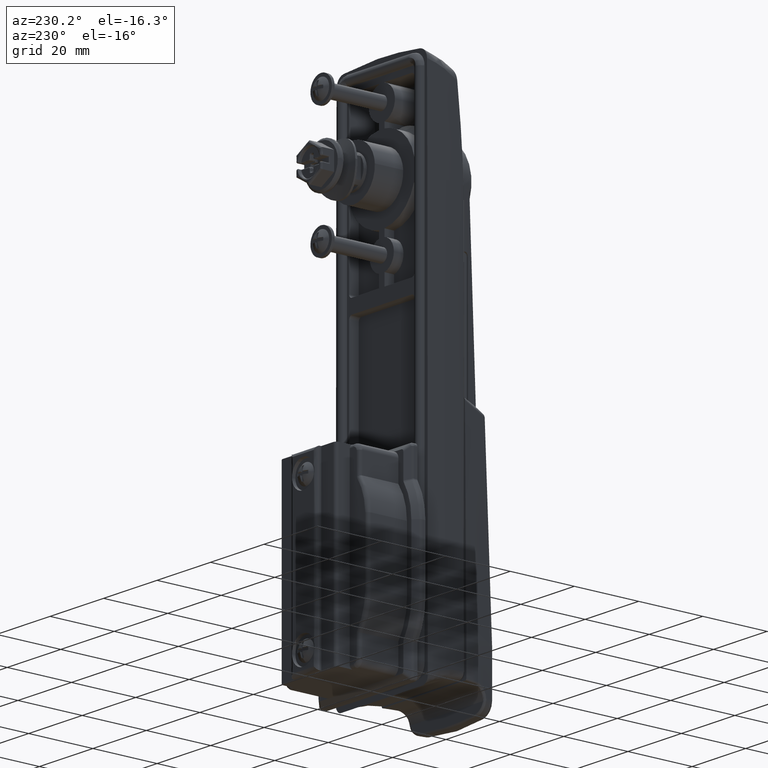
[diagram: clean part render]
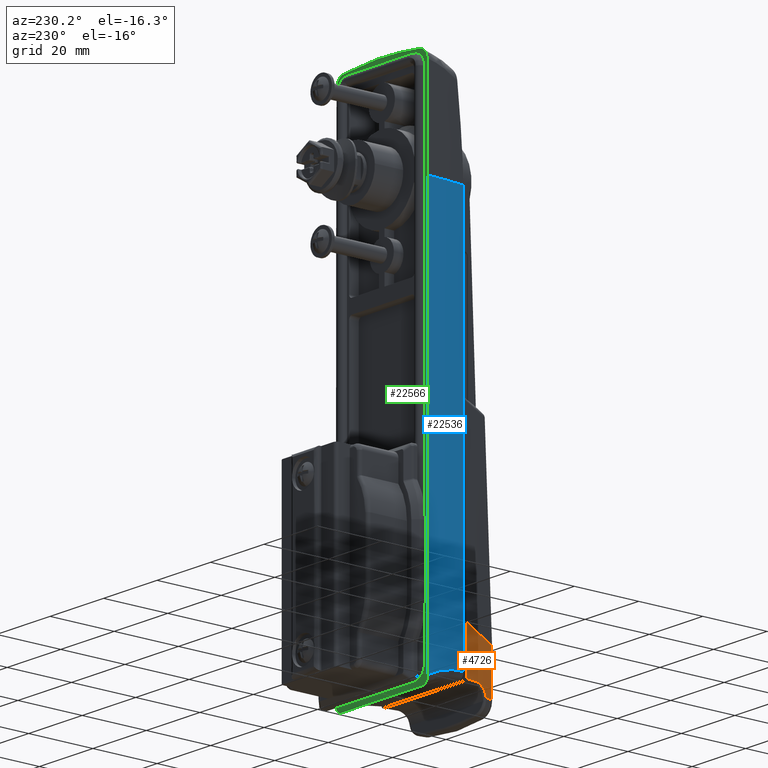
[diagram: same view with three faces highlighted in distinct colors, each labeled with its STEP entity id]
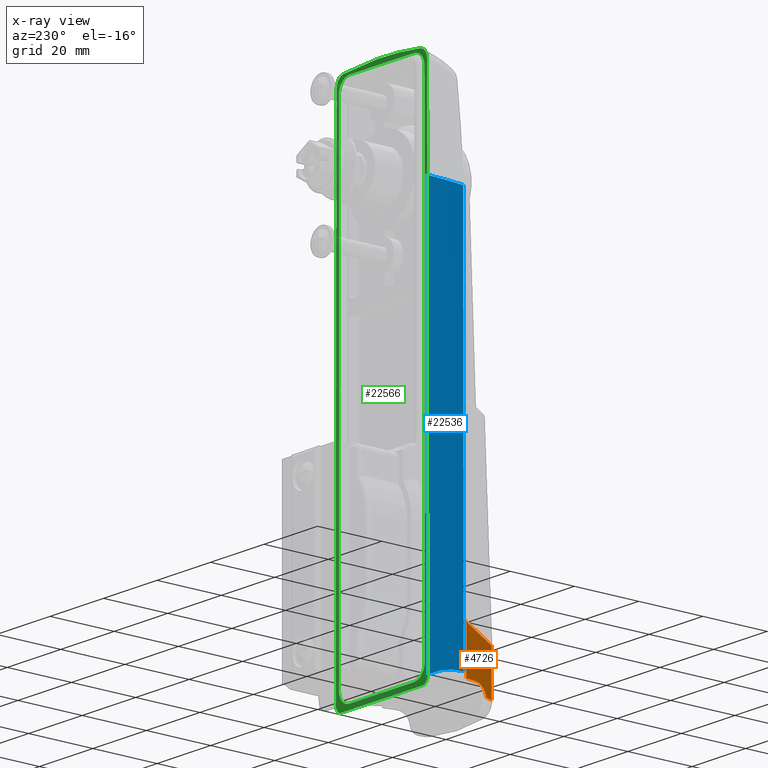
[diagram: x-ray of the same camera — body ghosted, the three highlighted faces saturated]
A machine part, auxiliary view with three faces highlighted in distinct colors.
The next image is the same camera in x-ray (body ghosted, the three faces saturated) — at least one of them is partly hidden behind the body in this view.
Their STEP definitions:

[orange] entity #4726 — the highlighted face is a freeform B-spline surface patch.
#1940=CARTESIAN_POINT('',(-20.437741579774698,14.173826685239799,-128.573514053459010));
#1941=VERTEX_POINT('',#1940);
#2052=CARTESIAN_POINT('',(-16.605501965684351,15.093079261935500,-125.500802460575400));
#2053=VERTEX_POINT('',#2052);
#2100=CARTESIAN_POINT('',(-16.605501965684351,15.093079261935500,-125.500802460575400));
#2101=CARTESIAN_POINT('',(-16.827259303146342,15.045209829929840,-125.500802390407000));
#2102=CARTESIAN_POINT('',(-17.264254399105589,14.949088619563851,-125.537942113242490));
#2103=CARTESIAN_POINT('',(-17.688808287833499,14.852352010851250,-125.646102903450400));
#2104=CARTESIAN_POINT('',(-17.950131986886610,14.791812633268449,-125.736820967770700));
#2105=CARTESIAN_POINT('',(-18.002089702753409,14.779725107226550,-125.756097955388600));
#2106=CARTESIAN_POINT('',(-18.104669506207820,14.755763922209050,-125.796628388056600));
#2107=CARTESIAN_POINT('',(-18.155398548861310,14.743865516036260,-125.817918198421790));
#2108=CARTESIAN_POINT('',(-18.305925429547159,14.708420586358651,-125.884823576951500));
#2109=CARTESIAN_POINT('',(-18.404065922734830,14.685123746863230,-125.933469714457300));
#2110=CARTESIAN_POINT('',(-18.691925368377031,14.616284173821530,-126.091433603701400));
#2111=CARTESIAN_POINT('',(-18.875131785500049,14.571780755695119,-126.212684557519590));
#2112=CARTESIAN_POINT('',(-19.092784929724630,14.518217882060490,-126.385161731757410));
#2113=CARTESIAN_POINT('',(-19.135787957097101,14.507598458035339,-126.420755985476500));
#2114=CARTESIAN_POINT('',(-19.219827187148859,14.486777904389530,-126.493389225147790));
#2115=CARTESIAN_POINT('',(-19.260963966618061,14.476552115898629,-126.530504005486510));
#2116=CARTESIAN_POINT('',(-19.381759383585091,14.446431535349729,-126.644214706792890));
#2117=CARTESIAN_POINT('',(-19.458807800658601,14.427092531759190,-126.723172734868100));
#2118=CARTESIAN_POINT('',(-19.679600805298591,14.371362369403201,-126.969432949510600));
#2119=CARTESIAN_POINT('',(-19.813073939053979,14.337239293128720,-127.146047814394290));
#2120=CARTESIAN_POINT('',(-19.961913021620930,14.298839051972850,-127.383198728200300));
#2121=CARTESIAN_POINT('',(-19.990834358631162,14.291357543896959,-127.431566495837300));
#2122=CARTESIAN_POINT('',(-20.046337405507021,14.276965089209870,-127.529130283157800));
#2123=CARTESIAN_POINT('',(-20.072962578813911,14.270043020656180,-127.578384717072890));
#2124=CARTESIAN_POINT('',(-20.149500359209789,14.250098384281090,-127.727549256621000));
#2125=CARTESIAN_POINT('',(-20.196081332915700,14.237896081916480,-127.828858057243490));
#2126=CARTESIAN_POINT('',(-20.322594530982279,14.204612104791000,-128.138345406523090));
#2127=CARTESIAN_POINT('',(-20.389402698898898,14.186829560079939,-128.352040771046690));
#2128=CARTESIAN_POINT('',(-20.437741579775551,14.173826685239559,-128.573514053462590));
#2129=B_SPLINE_CURVE_WITH_KNOTS('',3,(#2100,#2101,#2102,#2103,#2104,#2105,#2106,#2107,#2108,#2109,#2110,#2111,#2112,#2113,#2114,#2115,#2116,#2117,#2118,#2119,#2120,#2121,#2122,#2123,#2124,#2125,#2126,#2127,#2128),.UNSPECIFIED.,.F.,.U.,(4,1,2,2,2,2,2,2,2,2,2,2,2,2,4),(0.0,0.125000000000027,0.250000000000054,0.281250000000060,0.312500000000067,0.375000000000073,0.500000000000085,0.531250000000085,0.562500000000085,0.625000000000074,0.750000000000054,0.781250000000049,0.812500000000044,0.875000000000034,1.0),.UNSPECIFIED.);
#2130=EDGE_CURVE('',#2053,#1941,#2129,.T.);
#2185=CARTESIAN_POINT('',(-12.850000756554859,15.821711655233900,-125.500812781385210));
#2186=VERTEX_POINT('',#2185);
#2220=CARTESIAN_POINT('',(-12.850000756554859,15.821711655233900,-125.500812781384990));
#2221=CARTESIAN_POINT('',(-14.106789356552440,15.605120382923269,-125.500809569918000));
#2222=CARTESIAN_POINT('',(-15.358875697322141,15.362181023727601,-125.500806129354200));
#2223=CARTESIAN_POINT('',(-16.605501965684301,15.093079261935500,-125.500802460577400));
#2224=QUASI_UNIFORM_CURVE('',3,(#2220,#2221,#2222,#2223),.UNSPECIFIED.,.F.,.U.);
#2225=EDGE_CURVE('',#2186,#2053,#2224,.T.);
#2612=CARTESIAN_POINT('',(-22.501971576443498,13.607963353824420,-128.650667776603600));
#2613=VERTEX_POINT('',#2612);
#2919=CARTESIAN_POINT('',(-22.500207369770351,13.630772271704700,-115.024608552734190));
#2920=VERTEX_POINT('',#2919);
#2930=CARTESIAN_POINT('',(-22.501971576443498,13.607963353824420,-128.650667776603600));
#2931=CARTESIAN_POINT('',(-22.500207369770351,13.630772271704700,-115.024608552734190));
#2932=QUASI_UNIFORM_CURVE('',1,(#2930,#2931),.UNSPECIFIED.,.F.,.U.);
#2933=EDGE_CURVE('',#2613,#2920,#2932,.T.);
#4353=CARTESIAN_POINT('',(-20.437741579774709,14.173826685239799,-128.573514053458890));
#4354=CARTESIAN_POINT('',(-21.128002714580671,13.993285559642150,-128.598808722920610));
#4355=CARTESIAN_POINT('',(-21.816151474673330,13.804646962075211,-128.624588930368300));
#4356=CARTESIAN_POINT('',(-22.501971576443530,13.607963353824429,-128.650667776603710));
#4357=QUASI_UNIFORM_CURVE('',3,(#4353,#4354,#4355,#4356),.UNSPECIFIED.,.F.,.U.);
#4358=EDGE_CURVE('',#1941,#2613,#4357,.T.);
#4654=CARTESIAN_POINT('',(-12.850000757293680,15.844782597469001,-111.405629074290600));
#4655=VERTEX_POINT('',#4654);
#4661=CARTESIAN_POINT('',(-12.850000757293680,15.844782597469001,-111.405629074290600));
#4662=CARTESIAN_POINT('',(-14.478377322571680,15.563168672131431,-112.007300921663800));
#4663=CARTESIAN_POINT('',(-16.097426644370561,15.237604086658511,-112.610063289267500));
#4664=CARTESIAN_POINT('',(-19.315743963194841,14.499149493107669,-113.817085305644300));
#4665=CARTESIAN_POINT('',(-20.914136686038852,14.086489876848750,-114.421013812189200));
#4666=CARTESIAN_POINT('',(-22.500207369416611,13.630772271812120,-115.024608552607400));
#4667=B_SPLINE_CURVE_WITH_KNOTS('',3,(#4661,#4662,#4663,#4664,#4665,#4666),.UNSPECIFIED.,.F.,.U.,(4,2,4),(0.0,0.500000000000000,0.999607673217950),.UNSPECIFIED.);
#4668=EDGE_CURVE('',#4655,#2920,#4667,.T.);
#4697=CARTESIAN_POINT('',(-22.597207533016640,13.580327619699711,-128.823118163626790));
#4698=CARTESIAN_POINT('',(-19.360511515486909,14.512164345254689,-128.823118163626700));
#4699=CARTESIAN_POINT('',(-16.072227485383710,15.264625764035451,-128.823118163626700));
#4700=CARTESIAN_POINT('',(-12.752376062995300,15.833098040190400,-128.823118163626790));
#4701=CARTESIAN_POINT('',(-22.596457411890029,13.590140624569001,-122.959805004840210));
#4702=CARTESIAN_POINT('',(-19.360005945502721,14.521876967636770,-122.959805004840210));
#4703=CARTESIAN_POINT('',(-16.071976043732519,15.274265573301800,-122.959805004840210));
#4704=CARTESIAN_POINT('',(-12.752383679539440,15.842693775904030,-122.959805004840210));
#4705=CARTESIAN_POINT('',(-22.595707290763428,13.599953629438280,-117.096491846053690));
#4706=CARTESIAN_POINT('',(-19.359500375518561,14.531589590018870,-117.096491846053690));
#4707=CARTESIAN_POINT('',(-16.071724602081328,15.283905382568170,-117.096491846053690));
#4708=CARTESIAN_POINT('',(-12.752391296083580,15.852289511617681,-117.096491846053690));
#4709=CARTESIAN_POINT('',(-22.594957169636821,13.609766634307570,-111.233178687267200));
#4710=CARTESIAN_POINT('',(-19.358994805534358,14.541302212400950,-111.233178687267300));
#4711=CARTESIAN_POINT('',(-16.071473160430131,15.293545191834500,-111.233178687267300));
#4712=CARTESIAN_POINT('',(-12.752398912627720,15.861885247331299,-111.233178687267300));
#4713=B_SPLINE_SURFACE_WITH_KNOTS('',3,3,((#4697,#4701,#4705,#4709),(#4698,#4702,#4706,#4710),(#4699,#4703,#4707,#4711),(#4700,#4704,#4708,#4712)),.UNSPECIFIED.,.F.,.F.,.U.,(4,4),(4,4),(0.0,10.104512247477381),(0.0,17.589964255271070),.UNSPECIFIED.);
#4714=CARTESIAN_POINT('',(-12.850000756554881,15.821711655233949,-125.500812781385210));
#4715=CARTESIAN_POINT('',(-12.850000756554870,15.844782597465890,-111.405629074290600));
#4716=B_SPLINE_CURVE_WITH_KNOTS('',1,(#4714,#4715),.UNSPECIFIED.,.F.,.U.,(2,2),(0.001968087661608,0.643941251325925),.UNSPECIFIED.);
#4717=EDGE_CURVE('',#2186,#4655,#4716,.T.);
#4718=ORIENTED_EDGE('',*,*,#4717,.F.);
#4719=ORIENTED_EDGE('',*,*,#2225,.T.);
#4720=ORIENTED_EDGE('',*,*,#2130,.T.);
#4721=ORIENTED_EDGE('',*,*,#4358,.T.);
#4722=ORIENTED_EDGE('',*,*,#2933,.T.);
#4723=ORIENTED_EDGE('',*,*,#4668,.F.);
#4724=EDGE_LOOP('',(#4718,#4719,#4720,#4721,#4722,#4723));
#4725=FACE_OUTER_BOUND('',#4724,.T.);
#4726=ADVANCED_FACE('',(#4725),#4713,.F.);

[blue] entity #22536 — the highlighted face is a freeform B-spline surface patch.
#17840=CARTESIAN_POINT('',(-12.188371010545641,15.946216387230249,-124.013165944536990));
#17841=VERTEX_POINT('',#17840);
#17993=CARTESIAN_POINT('',(-12.188371010545501,15.802942081787300,-2.741120213272550));
#17994=VERTEX_POINT('',#17993);
#18030=CARTESIAN_POINT('',(-12.187701617093960,15.803056015544600,-2.741120213272550));
#18031=VERTEX_POINT('',#18030);
#18041=CARTESIAN_POINT('',(-12.188371010545501,15.802942081787300,-2.741120213272550));
#18042=CARTESIAN_POINT('',(-12.188147879531639,15.802980060511690,-2.741120213272582));
#18043=CARTESIAN_POINT('',(-12.187924748381119,15.803018038430791,-2.741120213272583));
#18044=CARTESIAN_POINT('',(-12.187701617093960,15.803056015544600,-2.741120213272550));
#18045=B_SPLINE_CURVE_WITH_KNOTS('',3,(#18041,#18042,#18043,#18044),.UNSPECIFIED.,.T.,.U.,(4,4),(0.011701804692554,1.0),.UNSPECIFIED.);
#18046=EDGE_CURVE('',#17994,#18031,#18045,.T.);
#18071=CARTESIAN_POINT('',(-12.188371010545641,15.946216387230249,-124.013165944536990));
#18072=CARTESIAN_POINT('',(-12.188371010545501,15.802942081787300,-2.741120213272550));
#18073=QUASI_UNIFORM_CURVE('',1,(#18071,#18072),.UNSPECIFIED.,.F.,.U.);
#18074=EDGE_CURVE('',#17841,#17994,#18073,.T.);
#18500=CARTESIAN_POINT('',(6.533205E-010,17.197324405857600,-127.378146507383600));
#18501=VERTEX_POINT('',#18500);
#18502=CARTESIAN_POINT('',(6.533205E-010,17.197324405857600,-127.378146507383600));
#18503=CARTESIAN_POINT('',(-0.116840766305112,17.193117683980340,-127.313363233889110));
#18504=CARTESIAN_POINT('',(-0.234500941312380,17.188658739707272,-127.249273611988500));
#18505=CARTESIAN_POINT('',(-0.470282840889361,17.179268855845859,-127.123127407136100));
#18506=CARTESIAN_POINT('',(-0.825234978199643,17.164454884556609,-126.936632081574000));
#18507=CARTESIAN_POINT('',(-1.423195171258767,17.136045329422469,-126.639386305381610));
#18508=CARTESIAN_POINT('',(-1.908329810677044,17.109189769163962,-126.416025989212000));
#18509=CARTESIAN_POINT('',(-2.396841194692513,17.080188231097399,-126.199878983044900));
#18510=CARTESIAN_POINT('',(-2.642949573232096,17.064603155483791,-126.095346325173300));
#18511=CARTESIAN_POINT('',(-3.879816512233944,16.981247914473229,-125.591606354662300));
#18512=CARTESIAN_POINT('',(-4.887791184733109,16.897338940870000,-125.249548242130800));
#18513=CARTESIAN_POINT('',(-6.426749776293596,16.742782501730328,-124.826408089207400));
#18514=CARTESIAN_POINT('',(-6.944792267004319,16.686404703850119,-124.700314386348000));
#18515=CARTESIAN_POINT('',(-7.984091601599841,16.564290371838659,-124.479513156394500));
#18516=CARTESIAN_POINT('',(-8.505943484486396,16.498503283712360,-124.384608858896800));
#18517=CARTESIAN_POINT('',(-9.553971013162029,16.357189104746261,-124.225542823323390));
#18518=CARTESIAN_POINT('',(-10.080695395912850,16.281572170395378,-124.161351787277990));
#18519=CARTESIAN_POINT('',(-11.134085155386780,16.120988064622971,-124.064100267723210));
#18520=CARTESIAN_POINT('',(-11.661084640311451,16.035985905763692,-124.030955427169200));
#18521=CARTESIAN_POINT('',(-12.188371010545699,15.946216387230230,-124.013165944537110));
#18522=B_SPLINE_CURVE_WITH_KNOTS('',3,(#18502,#18503,#18504,#18505,#18506,#18507,#18508,#18509,#18510,#18511,#18512,#18513,#18514,#18515,#18516,#18517,#18518,#18519,#18520,#18521),.UNSPECIFIED.,.F.,.U.,(4,2,1,1,2,2,2,2,2,2,4),(0.0,0.031250000000000,0.062500000000000,0.125000000000000,0.187499999999999,0.249999999999999,0.499999999999999,0.624999999999999,0.749999999999999,0.875000000000000,1.0),.UNSPECIFIED.);
#18523=EDGE_CURVE('',#18501,#17841,#18522,.T.);
#22447=CARTESIAN_POINT('',(0.000000013799381,17.050074615089049,-2.741120213272565));
#22448=VERTEX_POINT('',#22447);
#22449=CARTESIAN_POINT('',(0.000000013799381,17.050074615089049,-2.741120213272565));
#22450=CARTESIAN_POINT('',(-4.084294811390555,16.905699549032949,-2.741120213272550));
#22451=CARTESIAN_POINT('',(-8.158804231884421,16.488777040942029,-2.741120213272550));
#22452=CARTESIAN_POINT('',(-12.187701617093960,15.803056015544589,-2.741120213272550));
#22453=B_SPLINE_CURVE_WITH_KNOTS('',3,(#22449,#22450,#22451,#22452),.UNSPECIFIED.,.F.,.U.,(4,4),(0.0,0.966654781013737),.UNSPECIFIED.);
#22454=EDGE_CURVE('',#22448,#18031,#22453,.T.);
#22508=CARTESIAN_POINT('',(0.122535644246560,17.052933609405091,-1.494749950331016));
#22509=CARTESIAN_POINT('',(-4.043868851036310,16.911141151255791,-1.494749950331015));
#22510=CARTESIAN_POINT('',(-8.200466985240919,16.485801938385780,-1.494749950331016));
#22511=CARTESIAN_POINT('',(-12.309244474597810,15.780895920523760,-1.494749950331016));
#22512=CARTESIAN_POINT('',(0.122535644246527,17.102998538307769,-43.871338890328950));
#22513=CARTESIAN_POINT('',(-4.043868851036303,16.961206080158480,-43.871338890328943));
#22514=CARTESIAN_POINT('',(-8.200466985240924,16.535866867288480,-43.871338890328943));
#22515=CARTESIAN_POINT('',(-12.309244474597810,15.830960849426489,-43.871338890328950));
#22516=CARTESIAN_POINT('',(0.122535644246494,17.153063467210458,-86.247927830326816));
#22517=CARTESIAN_POINT('',(-4.043868851036303,17.011271009061161,-86.247927830326816));
#22518=CARTESIAN_POINT('',(-8.200466985240935,16.585931796191161,-86.247927830326816));
#22519=CARTESIAN_POINT('',(-12.309244474597831,15.881025778329169,-86.247927830326816));
#22520=CARTESIAN_POINT('',(0.122535644246461,17.203128396113151,-128.624516770324700));
#22521=CARTESIAN_POINT('',(-4.043868851036299,17.061335937963850,-128.624516770324700));
#22522=CARTESIAN_POINT('',(-8.200466985240958,16.635996725093840,-128.624516770324700));
#22523=CARTESIAN_POINT('',(-12.309244474597831,15.931090707231860,-128.624516770324700));
#22524=B_SPLINE_SURFACE_WITH_KNOTS('',3,3,((#22508,#22512,#22516,#22520),(#22509,#22513,#22517,#22521),(#22510,#22514,#22518,#22522),(#22511,#22515,#22519,#22523)),.UNSPECIFIED.,.F.,.F.,.U.,(4,4),(4,4),(0.0,12.506449683084000),(0.0,127.129855542197300),.UNSPECIFIED.);
#22525=ORIENTED_EDGE('',*,*,#18074,.T.);
#22526=ORIENTED_EDGE('',*,*,#18046,.T.);
#22527=ORIENTED_EDGE('',*,*,#22454,.F.);
#22528=CARTESIAN_POINT('',(0.000000013799381,17.050074615089049,-2.741120213272565));
#22529=CARTESIAN_POINT('',(1.306644E-009,17.197324405857760,-127.378146507383600));
#22530=B_SPLINE_CURVE_WITH_KNOTS('',1,(#22528,#22529),.UNSPECIFIED.,.F.,.U.,(2,2),(0.0,0.981970075848105),.UNSPECIFIED.);
#22531=EDGE_CURVE('',#22448,#18501,#22530,.T.);
#22532=ORIENTED_EDGE('',*,*,#22531,.T.);
#22533=ORIENTED_EDGE('',*,*,#18523,.T.);
#22534=EDGE_LOOP('',(#22525,#22526,#22527,#22532,#22533));
#22535=FACE_OUTER_BOUND('',#22534,.T.);
#22536=ADVANCED_FACE('',(#22535),#22524,.F.);

[green] entity #22566 — the highlighted face is a freeform B-spline surface patch.
#18214=CARTESIAN_POINT('',(1.959946E-009,-17.197324400774551,-127.378146501003600));
#18215=VERTEX_POINT('',#18214);
#18239=CARTESIAN_POINT('',(3.028732E-014,-15.234333885611051,-129.666603341121400));
#18240=VERTEX_POINT('',#18239);
#18270=CARTESIAN_POINT('',(1.959946E-009,-17.197324400774551,-127.378146501003600));
#18271=CARTESIAN_POINT('',(1.226373E-009,-17.197490496562828,-127.518735468622910));
#18272=CARTESIAN_POINT('',(1.147359E-009,-17.186520723997649,-127.657125390605200));
#18273=CARTESIAN_POINT('',(9.917232E-010,-17.143348145423872,-127.929712260310400));
#18274=CARTESIAN_POINT('',(9.151022E-010,-17.111147920065729,-128.063909717645090));
#18275=CARTESIAN_POINT('',(8.020649E-010,-17.046048502534440,-128.261888520472100));
#18276=CARTESIAN_POINT('',(7.646250E-010,-17.021473181712690,-128.327462357820000));
#18277=CARTESIAN_POINT('',(6.907572E-010,-16.966540053578459,-128.456837801461210));
#18278=CARTESIAN_POINT('',(6.547791E-010,-16.936529228937559,-128.519851588495100));
#18279=CARTESIAN_POINT('',(5.497026E-010,-16.838888642040800,-128.703887375443000));
#18280=CARTESIAN_POINT('',(4.834321E-010,-16.763731050535949,-128.819956621940690));
#18281=CARTESIAN_POINT('',(3.901584E-010,-16.634670369965509,-128.983320317222900));
#18282=CARTESIAN_POINT('',(3.600961E-010,-16.588911178137270,-129.035972846475000));
#18283=CARTESIAN_POINT('',(3.166844E-010,-16.515795327310919,-129.112006064842490));
#18284=CARTESIAN_POINT('',(3.025168E-010,-16.490703144948750,-129.136819875676590));
#18285=CARTESIAN_POINT('',(2.751020E-010,-16.439596298639380,-129.184835445308290));
#18286=CARTESIAN_POINT('',(2.618119E-010,-16.413510960202089,-129.208112365271010));
#18287=CARTESIAN_POINT('',(1.974656E-010,-16.280401978645020,-129.320811432649610));
#18288=CARTESIAN_POINT('',(1.526451E-010,-16.165429848688341,-129.399312161082690));
#18289=CARTESIAN_POINT('',(1.059425E-010,-16.009830694544060,-129.481109170893010));
#18290=CARTESIAN_POINT('',(9.706165E-011,-15.978048264489439,-129.496663507439590));
#18291=CARTESIAN_POINT('',(8.050522E-011,-15.914114163929380,-129.525661188167990));
#18292=CARTESIAN_POINT('',(7.279810E-011,-15.881865965540539,-129.539159797460000));
#18293=CARTESIAN_POINT('',(5.138222E-011,-15.784281756637061,-129.576668560077710));
#18294=CARTESIAN_POINT('',(3.937443E-011,-15.718108353800730,-129.597699551198300));
#18295=CARTESIAN_POINT('',(1.996424E-011,-15.583494306606511,-129.631695445328400));
#18296=CARTESIAN_POINT('',(1.256113E-011,-15.515054014773799,-129.644661602504700));
#18297=CARTESIAN_POINT('',(2.579150E-012,-15.375798443463189,-129.662144504023590));
#18298=CARTESIAN_POINT('',(3.334774E-014,-15.304991060142321,-129.666603341110490));
#18299=CARTESIAN_POINT('',(3.334915E-014,-15.234333885610800,-129.666603341110600));
#18300=B_SPLINE_CURVE_WITH_KNOTS('',3,(#18270,#18271,#18272,#18273,#18274,#18275,#18276,#18277,#18278,#18279,#18280,#18281,#18282,#18283,#18284,#18285,#18286,#18287,#18288,#18289,#18290,#18291,#18292,#18293,#18294,#18295,#18296,#18297,#18298,#18299),.UNSPECIFIED.,.F.,.U.,(4,2,2,2,2,2,2,2,2,2,2,2,2,2,4),(0.0,0.124999999999957,0.249999999999914,0.312499999999905,0.374999999999896,0.499999999999900,0.562499999999903,0.593749999999903,0.624999999999904,0.749999999999910,0.781249999999920,0.812499999999930,0.874999999999953,0.937499999999977,1.0),.UNSPECIFIED.);
#18301=EDGE_CURVE('',#18215,#18240,#18300,.T.);
#18468=CARTESIAN_POINT('',(2.655610E-014,15.234333897662950,-129.666603341121400));
#18469=VERTEX_POINT('',#18468);
#18500=CARTESIAN_POINT('',(6.533205E-010,17.197324405857600,-127.378146507383600));
#18501=VERTEX_POINT('',#18500);
#18525=CARTESIAN_POINT('',(2.655610E-014,15.234333897662950,-129.666603341121400));
#18526=CARTESIAN_POINT('',(4.819798E-012,15.375104337358080,-129.666603341113610));
#18527=CARTESIAN_POINT('',(9.931127E-012,15.512816257586049,-129.649268996253800));
#18528=CARTESIAN_POINT('',(3.403494E-011,15.681330508908429,-129.607052479455490));
#18529=CARTESIAN_POINT('',(3.944839E-011,15.714850201947300,-129.597571121394400));
#18530=CARTESIAN_POINT('',(5.146848E-011,15.781520852415120,-129.576518573805400));
#18531=CARTESIAN_POINT('',(5.810043E-011,15.814781684520380,-129.564903085778210));
#18532=CARTESIAN_POINT('',(7.959627E-011,15.913050169870949,-129.527254290199690));
#18533=CARTESIAN_POINT('',(9.602359E-011,15.976508049516410,-129.498482725494400));
#18534=CARTESIAN_POINT('',(1.328024E-010,16.099578844513260,-129.434066630435410));
#18535=CARTESIAN_POINT('',(1.531549E-010,16.159190757337441,-129.398420308040190));
#18536=CARTESIAN_POINT('',(1.976565E-010,16.274694661933399,-129.320478215386690));
#18537=CARTESIAN_POINT('',(2.219530E-010,16.330872005138620,-129.277924199562990));
#18538=CARTESIAN_POINT('',(2.992407E-010,16.491291474151200,-129.142559064754010));
#18539=CARTESIAN_POINT('',(3.564634E-010,16.587600004790609,-129.042336459919110));
#18540=CARTESIAN_POINT('',(4.500003E-010,16.717681691978619,-128.878511799052010));
#18541=CARTESIAN_POINT('',(4.826307E-010,16.758789198139890,-128.821361368129200));
#18542=CARTESIAN_POINT('',(5.495096E-010,16.835158206977841,-128.704226607978310));
#18543=CARTESIAN_POINT('',(5.837602E-010,16.870470715258651,-128.644238537408310));
#18544=CARTESIAN_POINT('',(6.888086E-010,16.968276796567970,-128.460251944058400));
#18545=CARTESIAN_POINT('',(7.618836E-010,17.022707683926669,-128.332265052095100));
#18546=CARTESIAN_POINT('',(9.139361E-010,17.110670795188192,-128.065953325116200));
#18547=CARTESIAN_POINT('',(9.911995E-010,17.143182528376752,-127.930630731955110));
#18548=CARTESIAN_POINT('',(1.147460E-009,17.186568748293109,-127.656949122890690));
#18549=CARTESIAN_POINT('',(1.226555E-009,17.197490126522428,-127.518417814006600));
#18550=CARTESIAN_POINT('',(1.306644E-009,17.197324405903650,-127.378146507383600));
#18551=B_SPLINE_CURVE_WITH_KNOTS('',3,(#18525,#18526,#18527,#18528,#18529,#18530,#18531,#18532,#18533,#18534,#18535,#18536,#18537,#18538,#18539,#18540,#18541,#18542,#18543,#18544,#18545,#18546,#18547,#18548,#18549,#18550),.UNSPECIFIED.,.F.,.U.,(4,2,2,2,2,2,2,2,2,2,2,2,4),(0.0,0.125000000000014,0.156250000000020,0.187500000000025,0.250000000000036,0.312500000000047,0.375000000000058,0.500000000000078,0.562500000000077,0.625000000000076,0.750000000000051,0.875000000000025,1.0),.UNSPECIFIED.);
#18552=EDGE_CURVE('',#18469,#18501,#18551,.T.);
#18655=CARTESIAN_POINT('',(0.000000091353040,-14.277100748402420,29.439197527204001));
#18656=VERTEX_POINT('',#18655);
#18678=CARTESIAN_POINT('',(0.000000044522055,-16.892713804516550,26.442357845155151));
#18679=VERTEX_POINT('',#18678);
#18701=CARTESIAN_POINT('',(0.000000091353039,-14.277100748402420,29.439197527204001));
#18702=CARTESIAN_POINT('',(0.000000091340020,-14.458420608423280,29.416395337174212));
#18703=CARTESIAN_POINT('',(0.000000090807253,-14.634813112475570,29.377320844990599));
#18704=CARTESIAN_POINT('',(0.000000090760433,-14.892319263712221,29.295319222412779));
#18705=CARTESIAN_POINT('',(0.000000090742587,-14.976966640763330,29.264062026256799));
#18706=CARTESIAN_POINT('',(0.000000090712404,-15.102127571633019,29.211198369031230));
#18707=CARTESIAN_POINT('',(0.000000090701773,-15.143545734775870,29.192579326843010));
#18708=CARTESIAN_POINT('',(0.000000090679353,-15.225767278772921,29.153310960257699));
#18709=CARTESIAN_POINT('',(0.000000090667552,-15.266592773584200,29.132642506333990));
#18710=CARTESIAN_POINT('',(0.000000090606256,-15.467072804094380,29.025286934408388));
#18711=CARTESIAN_POINT('',(0.000000090549502,-15.617578663653520,28.925885255552270));
#18712=CARTESIAN_POINT('',(0.000000090453145,-15.828968814742300,28.757120779181999));
#18713=CARTESIAN_POINT('',(0.000000090419143,-15.897022588764109,28.697568658351880));
#18714=CARTESIAN_POINT('',(0.000000090347294,-16.028207067596519,28.571727718418501));
#18715=CARTESIAN_POINT('',(0.000000090309378,-16.091374539783061,28.505320951328180));
#18716=CARTESIAN_POINT('',(0.000000090192146,-16.269656205649220,28.299994810392580));
#18717=CARTESIAN_POINT('',(0.000000090108667,-16.375021937375820,28.153786020294909));
#18718=CARTESIAN_POINT('',(0.000000089975605,-16.513197709915069,27.920734825728140));
#18719=CARTESIAN_POINT('',(0.000000089929936,-16.555924397598119,27.840747762046071));
#18720=CARTESIAN_POINT('',(0.000000089835894,-16.634529180685259,27.676039228526591));
#18721=CARTESIAN_POINT('',(0.000000089788028,-16.669965062243381,27.592204925375398));
#18722=CARTESIAN_POINT('',(0.000000089642863,-16.764377461954830,27.337954935007119));
#18723=CARTESIAN_POINT('',(0.000000089543627,-16.811868767443990,27.164149453478199));
#18724=CARTESIAN_POINT('',(0.000000089391103,-16.860032195320709,26.897011398531209));
#18725=CARTESIAN_POINT('',(0.000000089339510,-16.872237531948290,26.806649514028660));
#18726=CARTESIAN_POINT('',(0.000000089235697,-16.888554617503861,26.624827158623919));
#18727=CARTESIAN_POINT('',(0.000000089183668,-16.892659842020439,26.533700294563278));
#18728=CARTESIAN_POINT('',(0.000000089131515,-16.892713644475251,26.442357845045400));
#18729=B_SPLINE_CURVE_WITH_KNOTS('',3,(#18701,#18702,#18703,#18704,#18705,#18706,#18707,#18708,#18709,#18710,#18711,#18712,#18713,#18714,#18715,#18716,#18717,#18718,#18719,#18720,#18721,#18722,#18723,#18724,#18725,#18726,#18727,#18728),.UNSPECIFIED.,.F.,.U.,(4,2,2,2,2,2,2,2,2,2,2,2,2,4),(0.0,0.124999999999994,0.187499999999991,0.218749999999990,0.249999999999990,0.374999999999988,0.437499999999988,0.499999999999988,0.624999999999990,0.687499999999991,0.749999999999992,0.874999999999996,0.937499999999998,1.0),.UNSPECIFIED.);
#18730=EDGE_CURVE('',#18656,#18679,#18729,.T.);
#18833=CARTESIAN_POINT('',(0.000000044565756,16.892713807223849,26.442357848023150));
#18834=VERTEX_POINT('',#18833);
#18854=CARTESIAN_POINT('',(0.000000091353040,14.277100756200801,29.439197526223349));
#18855=VERTEX_POINT('',#18854);
#18873=CARTESIAN_POINT('',(0.000000044565756,16.892713807223849,26.442357848023150));
#18874=CARTESIAN_POINT('',(0.000000089235856,16.892606008610709,26.625103914143342));
#18875=CARTESIAN_POINT('',(0.000000089338632,16.876381865094480,26.805110626907570));
#18876=CARTESIAN_POINT('',(0.000000089490535,16.828740776193118,27.071159521103581));
#18877=CARTESIAN_POINT('',(0.000000089540790,16.808952437116531,27.159178239492981));
#18878=CARTESIAN_POINT('',(0.000000089615593,16.773304606767411,27.290192379674849));
#18879=CARTESIAN_POINT('',(0.000000089640431,16.760426307570420,27.333694520515060));
#18880=CARTESIAN_POINT('',(0.000000089689910,16.732642434082681,27.420354222282828));
#18881=CARTESIAN_POINT('',(0.000000089714610,16.717695702665601,27.463615285001090));
#18882=CARTESIAN_POINT('',(0.000000089836546,16.638487524745429,27.677179102072959));
#18883=CARTESIAN_POINT('',(0.000000089929543,16.560765992527902,27.840059313769071));
#18884=CARTESIAN_POINT('',(0.000000090062389,16.423206814221121,28.072731877009769));
#18885=CARTESIAN_POINT('',(0.000000090105556,16.373836514636480,28.148336393204598));
#18886=CARTESIAN_POINT('',(0.000000090189608,16.267897313314339,28.295548284490199));
#18887=CARTESIAN_POINT('',(0.000000090230683,16.211012273015879,28.367488700180360));
#18888=CARTESIAN_POINT('',(0.000000090348257,16.032330341329800,28.573413237404520));
#18889=CARTESIAN_POINT('',(0.000000090419559,15.902278410417660,28.698295253515418));
#18890=CARTESIAN_POINT('',(0.000000090516077,15.691090513898191,28.867341196461819));
#18891=CARTESIAN_POINT('',(0.000000090546500,15.617993426502521,28.920625373366370));
#18892=CARTESIAN_POINT('',(0.000000090589436,15.504181582538560,28.995824996246590));
#18893=CARTESIAN_POINT('',(0.000000090603331,15.465445899258279,29.020162313112639));
#18894=CARTESIAN_POINT('',(0.000000090630010,15.387120277031951,29.066888106579590));
#18895=CARTESIAN_POINT('',(0.000000090642786,15.347562230210331,29.089265548038970));
#18896=CARTESIAN_POINT('',(0.000000090703905,15.147830329944890,29.196311529924301));
#18897=CARTESIAN_POINT('',(0.000000090744021,14.981878568850711,29.266573807339189));
#18898=CARTESIAN_POINT('',(0.000000090791140,14.723779406778061,29.349099544789361));
#18899=CARTESIAN_POINT('',(0.000000090804657,14.636208638585890,29.372774086415820));
#18900=CARTESIAN_POINT('',(0.000000090827167,14.457888742157490,29.412198451326120));
#18901=CARTESIAN_POINT('',(0.000000090836070,14.367794945712101,29.427792122758358));
#18902=CARTESIAN_POINT('',(0.000000090842582,14.277100756183801,29.439197526144049));
#18903=B_SPLINE_CURVE_WITH_KNOTS('',3,(#18873,#18874,#18875,#18876,#18877,#18878,#18879,#18880,#18881,#18882,#18883,#18884,#18885,#18886,#18887,#18888,#18889,#18890,#18891,#18892,#18893,#18894,#18895,#18896,#18897,#18898,#18899,#18900,#18901,#18902),.UNSPECIFIED.,.F.,.U.,(4,2,2,2,2,2,2,2,2,2,2,2,2,2,4),(0.0,0.125000000000002,0.187500000000003,0.218750000000003,0.250000000000002,0.375000000000002,0.437500000000001,0.500000000000000,0.625000000000000,0.687500000000001,0.718750000000001,0.750000000000000,0.875000000000000,0.937500000000000,1.0),.UNSPECIFIED.);
#18904=EDGE_CURVE('',#18834,#18855,#18903,.T.);
#20783=CARTESIAN_POINT('',(0.000000091353040,-14.277100748402420,29.439197527204001));
#20784=CARTESIAN_POINT('',(0.000000091353040,3.960799E-009,31.234638822839404));
#20785=CARTESIAN_POINT('',(0.000000091353040,14.277100756200760,29.439197526223399));
#20793=(BOUNDED_CURVE()B_SPLINE_CURVE(2,(#20783,#20784,#20785),.UNSPECIFIED.,.F.,.U.)CURVE()GEOMETRIC_REPRESENTATION_ITEM()QUASI_UNIFORM_CURVE()RATIONAL_B_SPLINE_CURVE((1.0,0.992185194962997,1.0))REPRESENTATION_ITEM(''));
#20794=EDGE_CURVE('',#18656,#18855,#20793,.T.);
#21819=CARTESIAN_POINT('',(3.028732E-014,-15.234333885611051,-129.666603341121400));
#21820=CARTESIAN_POINT('',(2.655610E-014,15.234333897662950,-129.666603341121400));
#21821=QUASI_UNIFORM_CURVE('',1,(#21819,#21820),.UNSPECIFIED.,.F.,.U.);
#21822=EDGE_CURVE('',#18240,#18469,#21821,.T.);
#21912=CARTESIAN_POINT('',(0.000000072469031,11.999880431669441,28.727551491687951));
#21913=VERTEX_POINT('',#21912);
#21920=CARTESIAN_POINT('',(0.000000088152485,15.999881582785550,24.727549007299249));
#21921=VERTEX_POINT('',#21920);
#21927=CARTESIAN_POINT('',(0.000000088152485,15.999881582785550,24.727549007299249));
#21928=CARTESIAN_POINT('',(0.000000072469031,15.999881556819837,28.727550132449764));
#21929=CARTESIAN_POINT('',(0.000000072469031,11.999880431670000,28.727552452813899));
#21937=(BOUNDED_CURVE()B_SPLINE_CURVE(2,(#21927,#21928,#21929),.UNSPECIFIED.,.F.,.U.)CURVE()GEOMETRIC_REPRESENTATION_ITEM()QUASI_UNIFORM_CURVE()RATIONAL_B_SPLINE_CURVE((1.0,0.707106988574680,1.0))REPRESENTATION_ITEM(''));
#21938=EDGE_CURVE('',#21921,#21913,#21937,.T.);
#21948=CARTESIAN_POINT('',(0.000000090436262,-12.000120708270000,28.727551491687951));
#21949=VERTEX_POINT('',#21948);
#21957=CARTESIAN_POINT('',(0.000000090436262,-12.000120708270000,28.727551491687951));
#21958=CARTESIAN_POINT('',(0.000000072469031,11.999880431669441,28.727551491687951));
#21959=QUASI_UNIFORM_CURVE('',1,(#21957,#21958),.UNSPECIFIED.,.F.,.U.);
#21960=EDGE_CURVE('',#21949,#21913,#21959,.T.);
#21979=CARTESIAN_POINT('',(0.000000088152485,-16.000121859385800,24.727548955367752));
#21980=VERTEX_POINT('',#21979);
#21988=CARTESIAN_POINT('',(0.000000090436262,-12.000120708270000,28.727551491687951));
#21989=CARTESIAN_POINT('',(0.000000072469031,-16.000121885351522,28.727550132449380));
#21990=CARTESIAN_POINT('',(0.000000072469031,-16.000121859385789,24.727548955367752));
#21998=(BOUNDED_CURVE()B_SPLINE_CURVE(2,(#21988,#21989,#21990),.UNSPECIFIED.,.F.,.U.)CURVE()GEOMETRIC_REPRESENTATION_ITEM()QUASI_UNIFORM_CURVE()RATIONAL_B_SPLINE_CURVE((1.0,0.707106983984572,1.0))REPRESENTATION_ITEM(''));
#21999=EDGE_CURVE('',#21949,#21980,#21998,.T.);
#22009=CARTESIAN_POINT('',(3.200730E-009,-16.000120898259048,-124.060755689538990));
#22010=VERTEX_POINT('',#22009);
#22018=CARTESIAN_POINT('',(3.200730E-009,-16.000120898259048,-124.060755689538990));
#22019=CARTESIAN_POINT('',(0.000000088152485,-16.000121859385800,24.727548955367752));
#22020=QUASI_UNIFORM_CURVE('',1,(#22018,#22019),.UNSPECIFIED.,.F.,.U.);
#22021=EDGE_CURVE('',#22010,#21980,#22020,.T.);
#22040=CARTESIAN_POINT('',(9.169436E-010,-12.000118387904759,-128.060759135054210));
#22041=VERTEX_POINT('',#22040);
#22049=CARTESIAN_POINT('',(3.200730E-009,-16.000120898259048,-124.060755689538990));
#22050=CARTESIAN_POINT('',(0.000000072469031,-16.000121833419776,-128.060759135054010));
#22051=CARTESIAN_POINT('',(0.000000072469031,-12.000118387904759,-128.060759135054010));
#22059=(BOUNDED_CURVE()B_SPLINE_CURVE(2,(#22049,#22050,#22051),.UNSPECIFIED.,.F.,.U.)CURVE()GEOMETRIC_REPRESENTATION_ITEM()QUASI_UNIFORM_CURVE()RATIONAL_B_SPLINE_CURVE((1.0,0.707106783481638,1.0))REPRESENTATION_ITEM(''));
#22060=EDGE_CURVE('',#22010,#22041,#22059,.T.);
#22070=CARTESIAN_POINT('',(9.169022E-010,11.999880431670061,-128.060758173927610));
#22071=VERTEX_POINT('',#22070);
#22079=CARTESIAN_POINT('',(9.169022E-010,11.999880431670061,-128.060758173927610));
#22080=CARTESIAN_POINT('',(9.169436E-010,-12.000118387904759,-128.060759135054210));
#22081=QUASI_UNIFORM_CURVE('',1,(#22079,#22080),.UNSPECIFIED.,.F.,.U.);
#22082=EDGE_CURVE('',#22071,#22041,#22081,.T.);
#22101=CARTESIAN_POINT('',(3.200773E-009,15.999881582785550,-124.060755663573000));
#22102=VERTEX_POINT('',#22101);
#22110=CARTESIAN_POINT('',(9.169022E-010,11.999880431670061,-128.060758173927610));
#22111=CARTESIAN_POINT('',(0.000000072469031,15.999881582785569,-128.060756814688630));
#22112=CARTESIAN_POINT('',(0.000000072469031,15.999881582785569,-124.060755663573000));
#22120=(BOUNDED_CURVE()B_SPLINE_CURVE(2,(#22110,#22111,#22112),.UNSPECIFIED.,.F.,.U.)CURVE()GEOMETRIC_REPRESENTATION_ITEM()QUASI_UNIFORM_CURVE()RATIONAL_B_SPLINE_CURVE((1.0,0.707106986279667,1.0))REPRESENTATION_ITEM(''));
#22121=EDGE_CURVE('',#22071,#22102,#22120,.T.);
#22134=CARTESIAN_POINT('',(0.000000088152485,15.999881582785550,24.727549007299249));
#22135=CARTESIAN_POINT('',(3.200773E-009,15.999881582785550,-124.060755663573000));
#22136=QUASI_UNIFORM_CURVE('',1,(#22134,#22135),.UNSPECIFIED.,.F.,.U.);
#22137=EDGE_CURVE('',#21921,#22102,#22136,.T.);
#22362=CARTESIAN_POINT('',(0.000000144554687,-17.050074719233201,-2.741120310253765));
#22363=VERTEX_POINT('',#22362);
#22371=CARTESIAN_POINT('',(0.000000015245924,-16.892808505528699,26.290662739086201));
#22372=VERTEX_POINT('',#22371);
#22373=CARTESIAN_POINT('',(0.000000015245924,-16.892808505528699,26.290662739086201));
#22374=CARTESIAN_POINT('',(0.000000168029773,-16.897612775384012,18.994808264561499));
#22375=CARTESIAN_POINT('',(0.000000019165960,-16.941757229722690,11.699031167523991));
#22376=CARTESIAN_POINT('',(0.000000085600970,-17.002380888958239,3.458416278078358));
#22377=CARTESIAN_POINT('',(0.000000095081247,-17.020974181760561,1.076908968214734));
#22378=CARTESIAN_POINT('',(0.000000022477154,-17.038682192216100,-1.304601471697472));
#22379=CARTESIAN_POINT('',(0.000000144554687,-17.050074719233201,-2.741120310253765));
#22380=B_SPLINE_CURVE_WITH_KNOTS('',3,(#22373,#22374,#22375,#22376,#22377,#22378,#22379),.UNSPECIFIED.,.F.,.U.,(4,2,1,4),(0.000001303271425,21.887546441555219,24.722583378552809,29.032275262988382),.UNSPECIFIED.);
#22381=EDGE_CURVE('',#22372,#22363,#22380,.T.);
#22383=CARTESIAN_POINT('',(0.000000044522055,-16.892713804516550,26.442357845155151));
#22384=CARTESIAN_POINT('',(0.000000089087764,-16.892758839144420,26.365730158649122));
#22385=CARTESIAN_POINT('',(0.000000089044904,-16.892808505528730,26.290662739086208));
#22386=B_SPLINE_CURVE_WITH_KNOTS('',2,(#22383,#22384,#22385),.UNSPECIFIED.,.F.,.U.,(3,3),(0.0,0.041758084686036),.UNSPECIFIED.);
#22387=EDGE_CURVE('',#18679,#22372,#22386,.T.);
#22447=CARTESIAN_POINT('',(0.000000013799381,17.050074615089049,-2.741120213272565));
#22448=VERTEX_POINT('',#22447);
#22458=CARTESIAN_POINT('',(-0.000000013474286,16.892808510604851,26.290662739086201));
#22459=VERTEX_POINT('',#22458);
#22460=CARTESIAN_POINT('',(0.000000044565756,16.892713807223849,26.442357848023150));
#22461=CARTESIAN_POINT('',(0.000000089087767,16.892758841922632,26.365733634221531));
#22462=CARTESIAN_POINT('',(0.000000089044905,16.892808510604858,26.290662739086208));
#22463=B_SPLINE_CURVE_WITH_KNOTS('',2,(#22460,#22461,#22462),.UNSPECIFIED.,.F.,.U.,(3,3),(0.958258902886222,1.0),.UNSPECIFIED.);
#22464=EDGE_CURVE('',#18834,#22459,#22463,.T.);
#22466=CARTESIAN_POINT('',(-0.000000013474286,16.892808510604851,26.290662739086201));
#22467=CARTESIAN_POINT('',(0.000000184986977,16.897539468199518,19.183905058923891));
#22468=CARTESIAN_POINT('',(0.000000015309761,16.939396360536630,12.077222083259160));
#22469=CARTESIAN_POINT('',(0.000000092441100,16.999001086588329,3.912188892752996));
#22470=CARTESIAN_POINT('',(0.000000056476640,17.019136858913669,1.341591050145965));
#22471=CARTESIAN_POINT('',(0.000000107778076,17.038112228868162,-1.229012247916438));
#22472=CARTESIAN_POINT('',(0.000000013799381,17.050074615089049,-2.741120213272565));
#22473=B_SPLINE_CURVE_WITH_KNOTS('',3,(#22466,#22467,#22468,#22469,#22470,#22471,#22472),.UNSPECIFIED.,.F.,.U.,(4,2,1,4),(0.000001239217735,21.320255064867538,24.495809482188641,29.032275143391669),.UNSPECIFIED.);
#22474=EDGE_CURVE('',#22459,#22448,#22473,.T.);
#22500=CARTESIAN_POINT('',(0.000000144554687,-17.050074719233201,-2.741120310253765));
#22501=CARTESIAN_POINT('',(1.306643E-009,-17.197324400774541,-127.378146501003600));
#22502=B_SPLINE_CURVE_WITH_KNOTS('',1,(#22500,#22501),.UNSPECIFIED.,.F.,.U.,(2,2),(0.018029924202161,0.999999999234951),.UNSPECIFIED.);
#22503=EDGE_CURVE('',#22363,#18215,#22502,.T.);
#22528=CARTESIAN_POINT('',(0.000000013799381,17.050074615089049,-2.741120213272565));
#22529=CARTESIAN_POINT('',(1.306644E-009,17.197324405857760,-127.378146507383600));
#22530=B_SPLINE_CURVE_WITH_KNOTS('',1,(#22528,#22529),.UNSPECIFIED.,.F.,.U.,(2,2),(0.0,0.981970075848105),.UNSPECIFIED.);
#22531=EDGE_CURVE('',#22448,#18501,#22530,.T.);
#22537=CARTESIAN_POINT('',(0.000000095913833,-18.915337042002321,38.321219382645261));
#22538=CARTESIAN_POINT('',(-4.562942E-009,-18.915337042002321,-137.658408608836710));
#22539=CARTESIAN_POINT('',(0.000000095913834,18.915337969621739,38.321219382645261));
#22540=CARTESIAN_POINT('',(-4.562942E-009,18.915337969621739,-137.658408608836710));
#22541=B_SPLINE_SURFACE_WITH_KNOTS('',1,1,((#22537,#22539),(#22538,#22540)),.UNSPECIFIED.,.F.,.F.,.U.,(2,2),(2,2),(0.0,175.979627991482000),(0.0,37.830675011624052),.UNSPECIFIED.);
#22542=ORIENTED_EDGE('',*,*,#21822,.T.);
#22543=ORIENTED_EDGE('',*,*,#18552,.T.);
#22544=ORIENTED_EDGE('',*,*,#22531,.F.);
#22545=ORIENTED_EDGE('',*,*,#22474,.F.);
#22546=ORIENTED_EDGE('',*,*,#22464,.F.);
#22547=ORIENTED_EDGE('',*,*,#18904,.T.);
#22548=ORIENTED_EDGE('',*,*,#20794,.F.);
#22549=ORIENTED_EDGE('',*,*,#18730,.T.);
#22550=ORIENTED_EDGE('',*,*,#22387,.T.);
#22551=ORIENTED_EDGE('',*,*,#22381,.T.);
#22552=ORIENTED_EDGE('',*,*,#22503,.T.);
#22553=ORIENTED_EDGE('',*,*,#18301,.T.);
#22554=EDGE_LOOP('',(#22542,#22543,#22544,#22545,#22546,#22547,#22548,#22549,#22550,#22551,#22552,#22553));
#22555=FACE_OUTER_BOUND('',#22554,.T.);
#22556=ORIENTED_EDGE('',*,*,#21938,.F.);
#22557=ORIENTED_EDGE('',*,*,#22137,.T.);
#22558=ORIENTED_EDGE('',*,*,#22121,.F.);
#22559=ORIENTED_EDGE('',*,*,#22082,.T.);
#22560=ORIENTED_EDGE('',*,*,#22060,.F.);
#22561=ORIENTED_EDGE('',*,*,#22021,.T.);
#22562=ORIENTED_EDGE('',*,*,#21999,.F.);
#22563=ORIENTED_EDGE('',*,*,#21960,.T.);
#22564=EDGE_LOOP('',(#22556,#22557,#22558,#22559,#22560,#22561,#22562,#22563));
#22565=FACE_BOUND('',#22564,.T.);
#22566=ADVANCED_FACE('',(#22555,#22565),#22541,.T.);